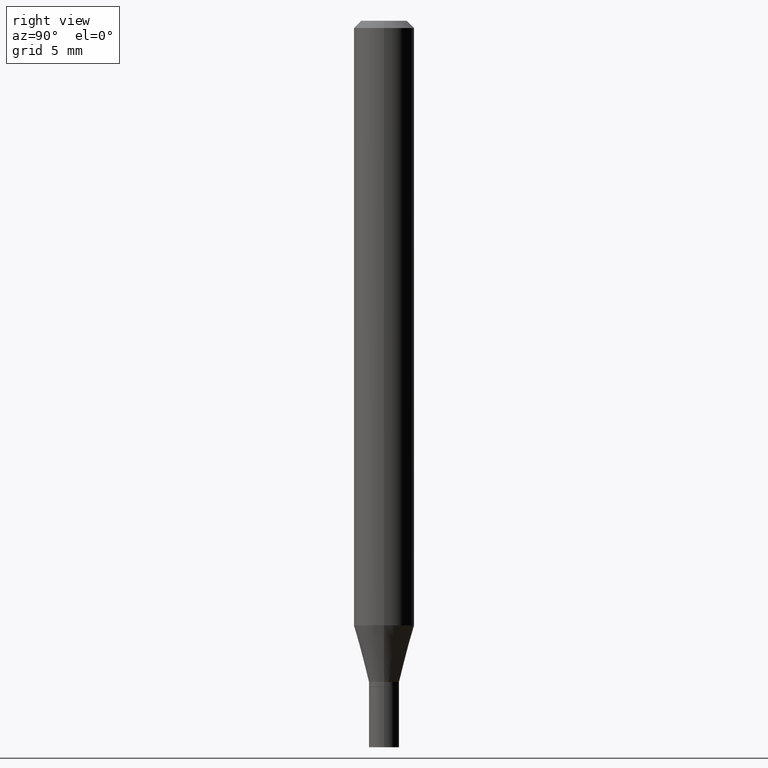
[diagram: clean part render]
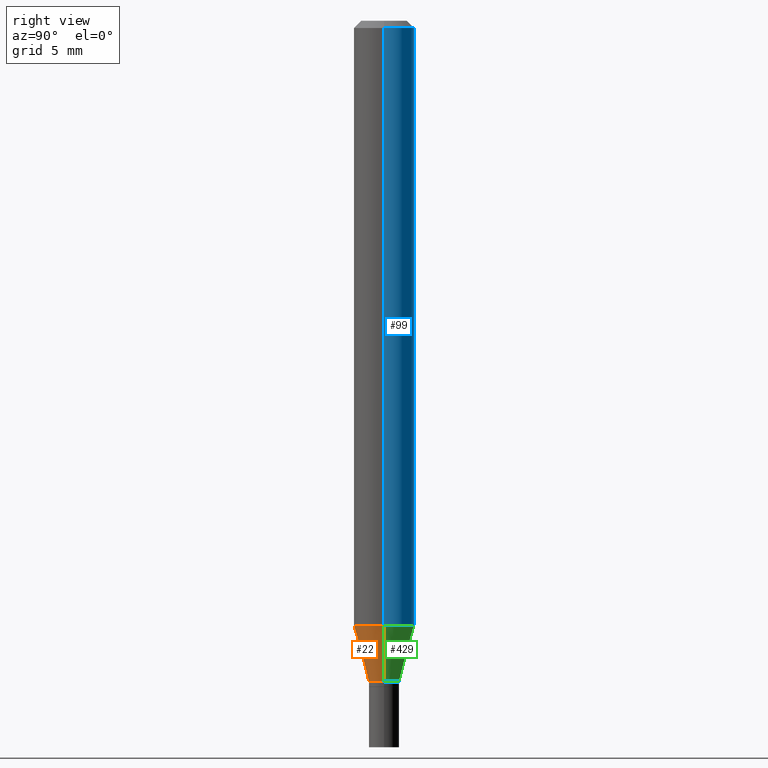
[diagram: same view with three faces highlighted in distinct colors, each labeled with its STEP entity id]
A machine part, right view with three faces highlighted in distinct colors.
Their STEP definitions:

[orange] entity #22 — the highlighted conical surface has half-angle 15 deg.
#22 = ADVANCED_FACE ( 'NONE', ( #109 ), #85, .T. ) ;
#24 = EDGE_CURVE ( 'NONE', #62, #218, #343, .T. ) ;
#34 = DIRECTION ( 'NONE',  ( -2.445468806185136597E-29, 3.491481338843145583E-15, 1.000000000000000000 ) ) ;
#40 = VERTEX_POINT ( 'NONE', #385 ) ;
#62 = VERTEX_POINT ( 'NONE', #419 ) ;
#63 = DIRECTION ( 'NONE',  ( -0.2588190451025215166, 5.211531920934551042E-15, 0.9659258262890679791 ) ) ;
#66 = ORIENTED_EDGE ( 'NONE', *, *, #403, .F. ) ;
#84 = EDGE_CURVE ( 'NONE', #186, #62, #339, .T. ) ;
#85 = CONICAL_SURFACE ( 'NONE', #338, 0.03124999999999966693, 0.2617993877991502405 ) ;
#86 = AXIS2_PLACEMENT_3D ( 'NONE', #265, #122, #263 ) ;
#106 = ORIENTED_EDGE ( 'NONE', *, *, #84, .T. ) ;
#109 = FACE_OUTER_BOUND ( 'NONE', #224, .T. ) ;
#122 = DIRECTION ( 'NONE',  ( -2.445468806185136597E-29, 3.491481338843145583E-15, 1.000000000000000000 ) ) ;
#131 = CARTESIAN_POINT ( 'NONE',  ( -0.03124999999999966693, -4.229205342785826785E-15, -1.364999999999999991 ) ) ;
#176 = DIRECTION ( 'NONE',  ( -2.445468806185136597E-29, 3.491481338843145583E-15, 1.000000000000000000 ) ) ;
#186 = VERTEX_POINT ( 'NONE', #131 ) ;
#205 = AXIS2_PLACEMENT_3D ( 'NONE', #244, #34, #382 ) ;
#210 = CARTESIAN_POINT ( 'NONE',  ( 3.338064920442711836E-29, -4.765872027520893280E-15, -1.364999999999999991 ) ) ;
#218 = VERTEX_POINT ( 'NONE', #458 ) ;
#224 = EDGE_LOOP ( 'NONE', ( #430, #106, #320, #66 ) ) ;
#233 = VECTOR ( 'NONE', #63, 39.37007874015748143 ) ;
#244 = CARTESIAN_POINT ( 'NONE',  ( 3.338064920442711836E-29, -4.765872027520893280E-15, -1.364999999999999991 ) ) ;
#258 = CARTESIAN_POINT ( 'NONE',  ( -0.03124999999999966693, -4.543827422595864339E-15, -1.364999999999999991 ) ) ;
#263 = DIRECTION ( 'NONE',  ( 1.000000000000000000, -6.982962677686270655E-15, 0.000000000000000000 ) ) ;
#265 = CARTESIAN_POINT ( 'NONE',  ( 3.052858238161217332E-29, -4.358672472825852637E-15, -1.248373412263471760 ) ) ;
#274 = EDGE_CURVE ( 'NONE', #186, #40, #349, .T. ) ;
#289 = VECTOR ( 'NONE', #422, 39.37007874015748143 ) ;
#320 = ORIENTED_EDGE ( 'NONE', *, *, #24, .T. ) ;
#338 = AXIS2_PLACEMENT_3D ( 'NONE', #210, #176, #428 ) ;
#339 = CIRCLE ( 'NONE', #205, 0.03124999999999966693 ) ;
#343 = LINE ( 'NONE', #346, #289 ) ;
#346 = CARTESIAN_POINT ( 'NONE',  ( 0.03124999999999966693, -4.984089611198587537E-15, -1.364999999999999991 ) ) ;
#349 = LINE ( 'NONE', #258, #233 ) ;
#382 = DIRECTION ( 'NONE',  ( 1.000000000000000000, -6.982962677686274599E-15, 0.000000000000000000 ) ) ;
#385 = CARTESIAN_POINT ( 'NONE',  ( -0.06250000000000000000, -3.914583262975789231E-15, -1.248373412263471760 ) ) ;
#403 = EDGE_CURVE ( 'NONE', #40, #218, #433, .T. ) ;
#419 = CARTESIAN_POINT ( 'NONE',  ( 0.03124999999999966693, -4.984089611198587537E-15, -1.364999999999999991 ) ) ;
#422 = DIRECTION ( 'NONE',  ( 0.2588190451025215166, 1.565188264969620784E-15, 0.9659258262890679791 ) ) ;
#428 = DIRECTION ( 'NONE',  ( 1.000000000000000000, -6.982962677686274599E-15, 0.000000000000000000 ) ) ;
#430 = ORIENTED_EDGE ( 'NONE', *, *, #274, .F. ) ;
#433 = CIRCLE ( 'NONE', #86, 0.06250000000000000000 ) ;
#458 = CARTESIAN_POINT ( 'NONE',  ( 0.06250000000000000000, -4.795107640181243517E-15, -1.248373412263471760 ) ) ;

[blue] entity #99 — the highlighted cylindrical surface (edge-blend (fillet) strip) has radius 1.5875 mm, axis along (-0, 0, 1).
#21 = ORIENTED_EDGE ( 'NONE', *, *, #170, .F. ) ;
#23 = CYLINDRICAL_SURFACE ( 'NONE', #313, 0.06250000000000000000 ) ;
#40 = VERTEX_POINT ( 'NONE', #385 ) ;
#45 = ORIENTED_EDGE ( 'NONE', *, *, #434, .T. ) ;
#56 = ORIENTED_EDGE ( 'NONE', *, *, #196, .T. ) ;
#71 = FACE_OUTER_BOUND ( 'NONE', #461, .T. ) ;
#73 = DIRECTION ( 'NONE',  ( -2.445468806185136597E-29, 3.491481338843145583E-15, 1.000000000000000000 ) ) ;
#89 = CARTESIAN_POINT ( 'NONE',  ( 3.052858238161217332E-29, -4.358672472825852637E-15, -1.248373412263471760 ) ) ;
#96 = ORIENTED_EDGE ( 'NONE', *, *, #395, .F. ) ;
#99 = ADVANCED_FACE ( 'NONE', ( #71 ), #23, .T. ) ;
#101 = CIRCLE ( 'NONE', #304, 0.06250000000000000000 ) ;
#149 = VECTOR ( 'NONE', #203, 39.37007874015748143 ) ;
#170 = EDGE_CURVE ( 'NONE', #316, #215, #101, .T. ) ;
#175 = CARTESIAN_POINT ( 'NONE',  ( 0.000000000000000000, 0.000000000000000000, 0.000000000000000000 ) ) ;
#179 = CIRCLE ( 'NONE', #408, 0.06250000000000000000 ) ;
#184 = CARTESIAN_POINT ( 'NONE',  ( 3.668203209277705088E-31, -5.237222008264718399E-17, -0.01499999999999999944 ) ) ;
#193 = CARTESIAN_POINT ( 'NONE',  ( 0.06250000000000000000, -4.364351673553916694E-16, 3.047610484872459871E-30 ) ) ;
#196 = EDGE_CURVE ( 'NONE', #218, #40, #179, .T. ) ;
#199 = VECTOR ( 'NONE', #323, 39.37007874015748143 ) ;
#202 = DIRECTION ( 'NONE',  ( -2.445468806185136597E-29, 3.491481338843145583E-15, 1.000000000000000000 ) ) ;
#203 = DIRECTION ( 'NONE',  ( -2.445468806185136877E-29, 3.491481338843145188E-15, 1.000000000000000000 ) ) ;
#215 = VERTEX_POINT ( 'NONE', #400 ) ;
#218 = VERTEX_POINT ( 'NONE', #458 ) ;
#266 = DIRECTION ( 'NONE',  ( 1.000000000000000000, -6.982962677686266711E-15, 4.876176775795935793E-29 ) ) ;
#270 = LINE ( 'NONE', #414, #149 ) ;
#273 = DIRECTION ( 'NONE',  ( -2.445468806185136597E-29, 3.491481338843145583E-15, 1.000000000000000000 ) ) ;
#304 = AXIS2_PLACEMENT_3D ( 'NONE', #184, #73, #354 ) ;
#313 = AXIS2_PLACEMENT_3D ( 'NONE', #175, #202, #266 ) ;
#316 = VERTEX_POINT ( 'NONE', #465 ) ;
#323 = DIRECTION ( 'NONE',  ( -2.445468806185136877E-29, 3.491481338843145188E-15, 1.000000000000000000 ) ) ;
#354 = DIRECTION ( 'NONE',  ( 1.000000000000000000, -6.982962677686266711E-15, 0.000000000000000000 ) ) ;
#359 = LINE ( 'NONE', #193, #199 ) ;
#385 = CARTESIAN_POINT ( 'NONE',  ( -0.06250000000000000000, -3.914583262975789231E-15, -1.248373412263471760 ) ) ;
#395 = EDGE_CURVE ( 'NONE', #218, #316, #359, .T. ) ;
#400 = CARTESIAN_POINT ( 'NONE',  ( -0.06250000000000000000, -1.761433136604187439E-15, -0.01499999999999999944 ) ) ;
#408 = AXIS2_PLACEMENT_3D ( 'NONE', #89, #273, #413 ) ;
#413 = DIRECTION ( 'NONE',  ( 1.000000000000000000, -6.982962677686270655E-15, 0.000000000000000000 ) ) ;
#414 = CARTESIAN_POINT ( 'NONE',  ( -0.06250000000000000000, 4.440892098500626162E-16, -3.074334431409316114E-30 ) ) ;
#434 = EDGE_CURVE ( 'NONE', #40, #215, #270, .T. ) ;
#458 = CARTESIAN_POINT ( 'NONE',  ( 0.06250000000000000000, -4.795107640181243517E-15, -1.248373412263471760 ) ) ;
#461 = EDGE_LOOP ( 'NONE', ( #56, #45, #21, #96 ) ) ;
#465 = CARTESIAN_POINT ( 'NONE',  ( 0.06250000000000000000, -4.888073874380388472E-16, -0.01499999999999999944 ) ) ;

[green] entity #429 — the highlighted conical surface has half-angle 15 deg.
#15 = CARTESIAN_POINT ( 'NONE',  ( 3.338064920442711836E-29, -4.765872027520893280E-15, -1.364999999999999991 ) ) ;
#24 = EDGE_CURVE ( 'NONE', #62, #218, #343, .T. ) ;
#25 = CARTESIAN_POINT ( 'NONE',  ( 3.338064920442711836E-29, -4.765872027520893280E-15, -1.364999999999999991 ) ) ;
#29 = CONICAL_SURFACE ( 'NONE', #411, 0.03124999999999966693, 0.2617993877991502405 ) ;
#31 = ORIENTED_EDGE ( 'NONE', *, *, #196, .F. ) ;
#33 = EDGE_CURVE ( 'NONE', #62, #186, #449, .T. ) ;
#40 = VERTEX_POINT ( 'NONE', #385 ) ;
#51 = DIRECTION ( 'NONE',  ( 1.000000000000000000, -6.982962677686274599E-15, 0.000000000000000000 ) ) ;
#62 = VERTEX_POINT ( 'NONE', #419 ) ;
#63 = DIRECTION ( 'NONE',  ( -0.2588190451025215166, 5.211531920934551042E-15, 0.9659258262890679791 ) ) ;
#89 = CARTESIAN_POINT ( 'NONE',  ( 3.052858238161217332E-29, -4.358672472825852637E-15, -1.248373412263471760 ) ) ;
#131 = CARTESIAN_POINT ( 'NONE',  ( -0.03124999999999966693, -4.229205342785826785E-15, -1.364999999999999991 ) ) ;
#179 = CIRCLE ( 'NONE', #408, 0.06250000000000000000 ) ;
#186 = VERTEX_POINT ( 'NONE', #131 ) ;
#196 = EDGE_CURVE ( 'NONE', #218, #40, #179, .T. ) ;
#197 = ORIENTED_EDGE ( 'NONE', *, *, #33, .T. ) ;
#218 = VERTEX_POINT ( 'NONE', #458 ) ;
#233 = VECTOR ( 'NONE', #63, 39.37007874015748143 ) ;
#236 = FACE_OUTER_BOUND ( 'NONE', #378, .T. ) ;
#247 = DIRECTION ( 'NONE',  ( 1.000000000000000000, -6.982962677686274599E-15, 0.000000000000000000 ) ) ;
#258 = CARTESIAN_POINT ( 'NONE',  ( -0.03124999999999966693, -4.543827422595864339E-15, -1.364999999999999991 ) ) ;
#273 = DIRECTION ( 'NONE',  ( -2.445468806185136597E-29, 3.491481338843145583E-15, 1.000000000000000000 ) ) ;
#274 = EDGE_CURVE ( 'NONE', #186, #40, #349, .T. ) ;
#289 = VECTOR ( 'NONE', #422, 39.37007874015748143 ) ;
#311 = DIRECTION ( 'NONE',  ( -2.445468806185136597E-29, 3.491481338843145583E-15, 1.000000000000000000 ) ) ;
#343 = LINE ( 'NONE', #346, #289 ) ;
#346 = CARTESIAN_POINT ( 'NONE',  ( 0.03124999999999966693, -4.984089611198587537E-15, -1.364999999999999991 ) ) ;
#349 = LINE ( 'NONE', #258, #233 ) ;
#378 = EDGE_LOOP ( 'NONE', ( #197, #386, #31, #466 ) ) ;
#385 = CARTESIAN_POINT ( 'NONE',  ( -0.06250000000000000000, -3.914583262975789231E-15, -1.248373412263471760 ) ) ;
#386 = ORIENTED_EDGE ( 'NONE', *, *, #274, .T. ) ;
#408 = AXIS2_PLACEMENT_3D ( 'NONE', #89, #273, #413 ) ;
#411 = AXIS2_PLACEMENT_3D ( 'NONE', #15, #445, #51 ) ;
#413 = DIRECTION ( 'NONE',  ( 1.000000000000000000, -6.982962677686270655E-15, 0.000000000000000000 ) ) ;
#419 = CARTESIAN_POINT ( 'NONE',  ( 0.03124999999999966693, -4.984089611198587537E-15, -1.364999999999999991 ) ) ;
#422 = DIRECTION ( 'NONE',  ( 0.2588190451025215166, 1.565188264969620784E-15, 0.9659258262890679791 ) ) ;
#429 = ADVANCED_FACE ( 'NONE', ( #236 ), #29, .T. ) ;
#445 = DIRECTION ( 'NONE',  ( -2.445468806185136597E-29, 3.491481338843145583E-15, 1.000000000000000000 ) ) ;
#449 = CIRCLE ( 'NONE', #453, 0.03124999999999966693 ) ;
#453 = AXIS2_PLACEMENT_3D ( 'NONE', #25, #311, #247 ) ;
#458 = CARTESIAN_POINT ( 'NONE',  ( 0.06250000000000000000, -4.795107640181243517E-15, -1.248373412263471760 ) ) ;
#466 = ORIENTED_EDGE ( 'NONE', *, *, #24, .F. ) ;